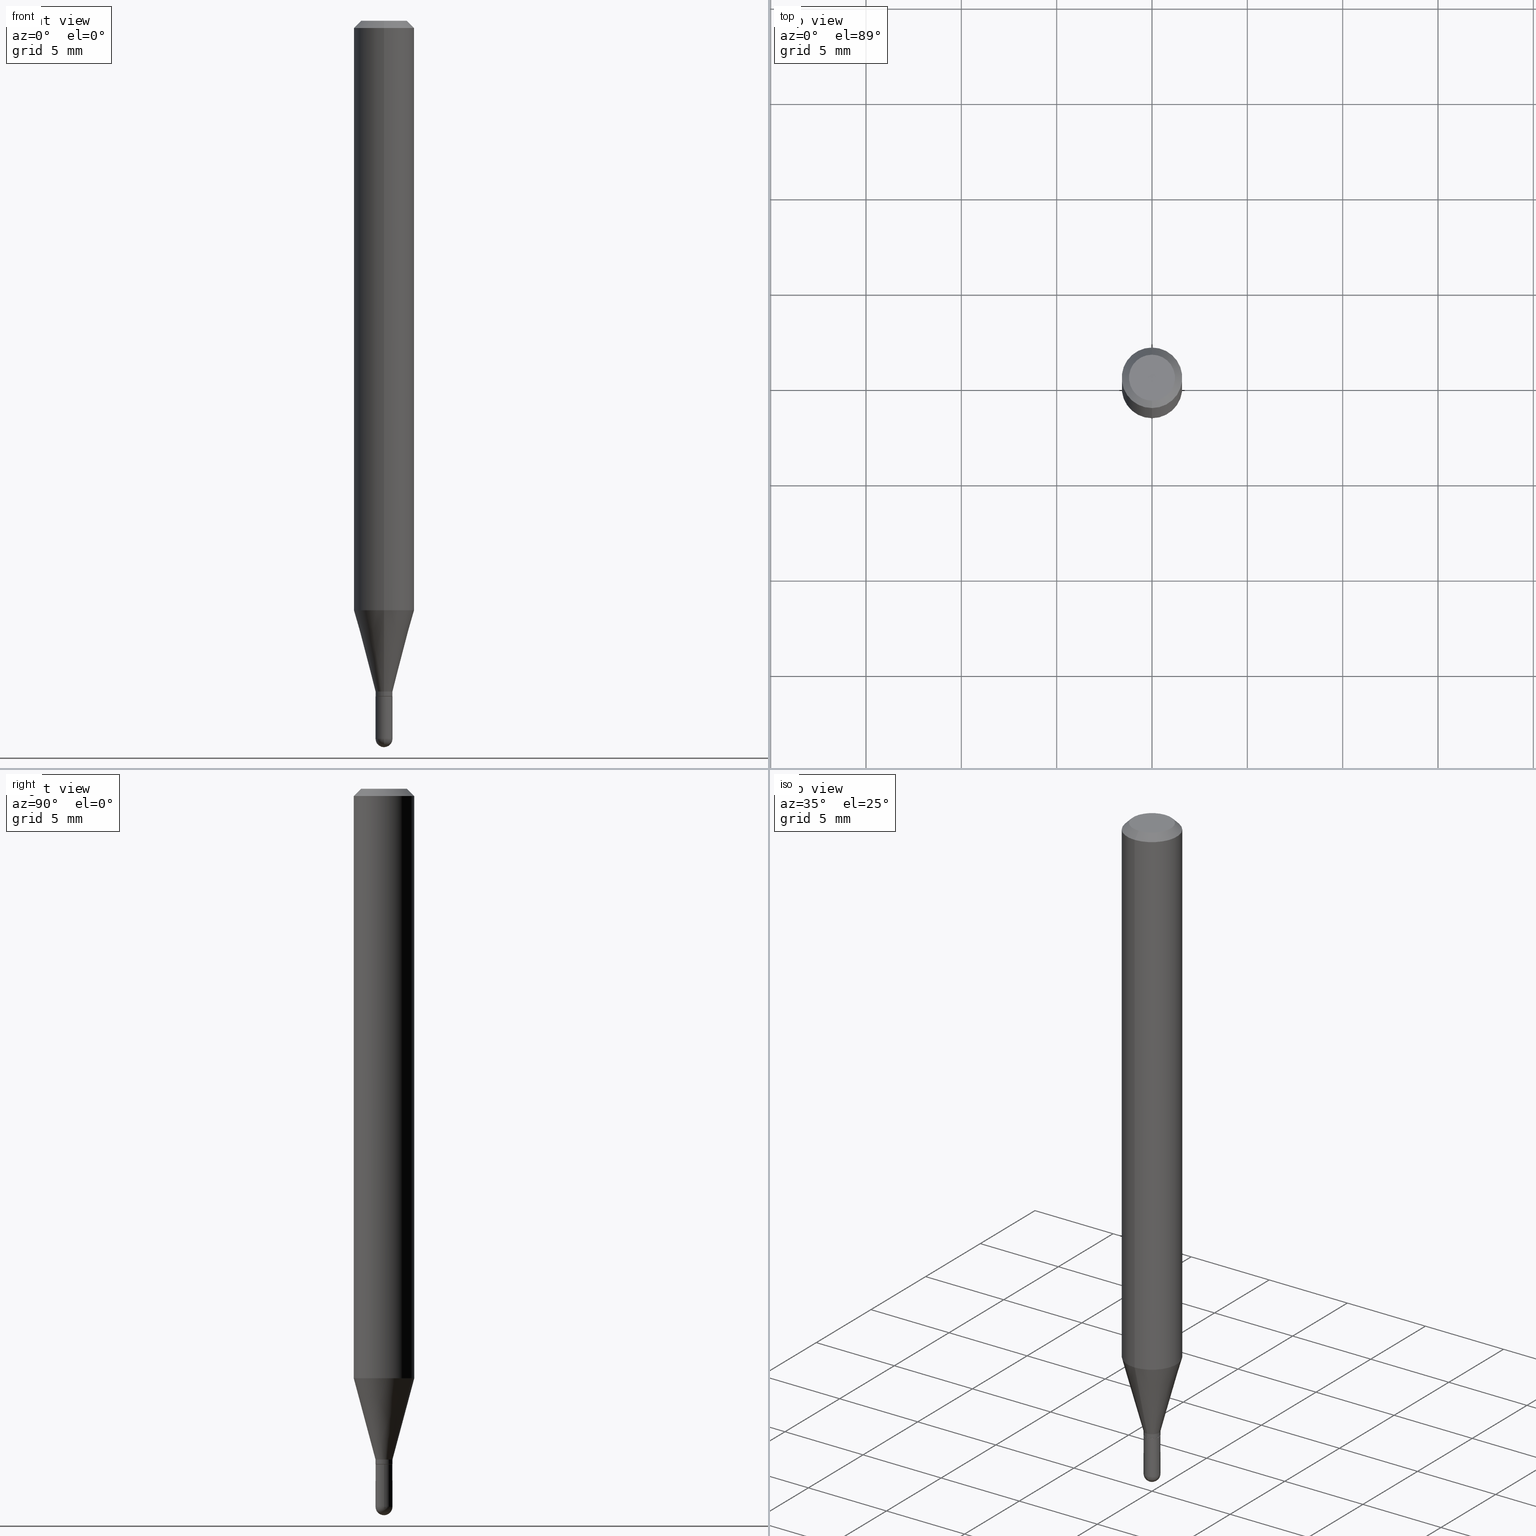
[diagram: canonical four-view strip — front | top / right | iso, engineering-drawing reading convention]
A machine part, canonical four-view strip (front | top / right | iso — engineering-drawing reading convention). The complete STEP part file that produces these views, byte-faithful:
ISO-10303-21;
HEADER;
FILE_DESCRIPTION (( 'STEP AP203' ),
    '1' );
FILE_NAME ('00473.STEP',
    '2024-03-07T17:59:15',
    ( '' ),
    ( '' ),
    'SwSTEP 2.0',
    'SolidWorks 2023',
    '' );
FILE_SCHEMA (( 'CONFIG_CONTROL_DESIGN' ));
ENDSEC;

DATA;
#1 = AXIS2_PLACEMENT_3D ( 'NONE', #98, #503, #107 ) ;
#2 = VECTOR ( 'NONE', #240, 39.37007874015748143 ) ;
#3 = CARTESIAN_POINT ( 'NONE',  ( 0.01750000000000000167, -4.992818314545698211E-15, -1.395000000000000018 ) ) ;
#4 = ORIENTED_EDGE ( 'NONE', *, *, #105, .F. ) ;
#5 = CARTESIAN_POINT ( 'NONE',  ( 4.440892098500924943E-16, 0.06249999999999993755, -0.01500000000000022669 ) ) ;
#6 = DIRECTION ( 'NONE',  ( 6.982962677686265922E-15, 1.000000000000000000, -3.491469234703768583E-15 ) ) ;
#7 = ORIENTED_EDGE ( 'NONE', *, *, #35, .F. ) ;
#8 = ADVANCED_FACE ( 'NONE', ( #328 ), #427, .T. ) ;
#9 = DIRECTION ( 'NONE',  ( -2.445477258460487856E-29, 3.491469234703768583E-15, 1.000000000000000000 ) ) ;
#10 =( NAMED_UNIT ( * ) SI_UNIT ( $, .STERADIAN. ) SOLID_ANGLE_UNIT ( ) );
#11 = EDGE_CURVE ( 'NONE', #233, #368, #108, .T. ) ;
#12 = DIRECTION ( 'NONE',  ( -6.982962677686266711E-15, -1.000000000000000000, 0.000000000000000000 ) ) ;
#13 = ORIENTED_EDGE ( 'NONE', *, *, #232, .T. ) ;
#14 = PERSON_AND_ORGANIZATION ( #388, #297 ) ;
#15 = DIRECTION ( 'NONE',  ( -2.445477258460488416E-29, 3.491469234703768188E-15, 1.000000000000000000 ) ) ;
#16 = ORIENTED_EDGE ( 'NONE', *, *, #280, .T. ) ;
#17 = CARTESIAN_POINT ( 'NONE',  ( 1.225686219186511394E-16, 0.01699999999999513012, -1.395000000000000018 ) ) ;
#18 = CC_DESIGN_PERSON_AND_ORGANIZATION_ASSIGNMENT ( #274, #308, ( #191 ) ) ;
#19 = CARTESIAN_POINT ( 'NONE',  ( -1.187103655206324139E-16, -0.01700000000000487232, -1.395000000000000018 ) ) ;
#20 = ORIENTED_EDGE ( 'NONE', *, *, #480, .T. ) ;
#21 = ORIENTED_EDGE ( 'NONE', *, *, #48, .F. ) ;
#22 = DIRECTION ( 'NONE',  ( -6.982962677686265133E-15, -1.000000000000000000, 0.000000000000000000 ) ) ;
#23 = LINE ( 'NONE', #151, #429 ) ;
#24 = VERTEX_POINT ( 'NONE', #375 ) ;
#25 = CYLINDRICAL_SURFACE ( 'NONE', #214, 0.06250000000000000000 ) ;
#26 = VERTEX_POINT ( 'NONE', #110 ) ;
#27 = DIRECTION ( 'NONE',  ( -2.445468806185136597E-29, 3.491481338843145583E-15, 1.000000000000000000 ) ) ;
#28 = CARTESIAN_POINT ( 'NONE',  ( 4.440892098500625669E-16, 0.06250000000000000000, -2.182168271689854871E-16 ) ) ;
#29 = CIRCLE ( 'NONE', #391, 0.01750000000000000167 ) ;
#30 = CIRCLE ( 'NONE', #452, 0.01700000000000000122 ) ;
#31 = DIRECTION ( 'NONE',  ( 2.445477258460487856E-29, -3.491469234703768583E-15, -1.000000000000000000 ) ) ;
#32 = ORIENTED_EDGE ( 'NONE', *, *, #415, .T. ) ;
#33 = PLANE ( 'NONE',  #194 ) ;
#34 = FACE_OUTER_BOUND ( 'NONE', #180, .T. ) ;
#35 = EDGE_CURVE ( 'NONE', #248, #379, #311, .T. ) ;
#36 = DIRECTION ( 'NONE',  ( -2.445477258460488416E-29, 3.491469234703768188E-15, 1.000000000000000000 ) ) ;
#37 = CARTESIAN_POINT ( 'NONE',  ( 3.625407505169465812E-29, -5.176121084834964763E-15, -1.482500000000000373 ) ) ;
#38 = FACE_OUTER_BOUND ( 'NONE', #411, .T. ) ;
#39 = VECTOR ( 'NONE', #493, 39.37007874015748143 ) ;
#40 = CC_DESIGN_APPROVAL ( #78, ( #191 ) ) ;
#41 = AXIS2_PLACEMENT_3D ( 'NONE', #341, #485, #373 ) ;
#42 = LOCAL_TIME ( 12, 59, 15.00000000000000000, #119 ) ;
#43 = MECHANICAL_CONTEXT ( 'NONE', #102, 'mechanical' ) ;
#44 = EDGE_LOOP ( 'NONE', ( #483, #16, #186, #4 ) ) ;
#45 = AXIS2_PLACEMENT_3D ( 'NONE', #67, #456, #101 ) ;
#46 = DATE_AND_TIME ( #103, #116 ) ;
#47 = ORIENTED_EDGE ( 'NONE', *, *, #239, .F. ) ;
#48 = EDGE_CURVE ( 'NONE', #492, #24, #357, .T. ) ;
#49 = DIRECTION ( 'NONE',  ( -2.445468806185136597E-29, 3.491481338843145583E-15, 1.000000000000000000 ) ) ;
#50 = DIRECTION ( 'NONE',  ( 0.000000000000000000, 0.000000000000000000, 1.000000000000000000 ) ) ;
#51 = VERTEX_POINT ( 'NONE', #72 ) ;
#52 = CC_DESIGN_PERSON_AND_ORGANIZATION_ASSIGNMENT ( #201, #162, ( #169 ) ) ;
#53 = CARTESIAN_POINT ( 'NONE',  ( 3.386986002967776783E-29, -4.835684890064719357E-15, -1.385000000000000009 ) ) ;
#54 = CARTESIAN_POINT ( 'NONE',  ( 3.410218036923151584E-29, -4.868853847794405178E-15, -1.394500000000000073 ) ) ;
#55 = ORIENTED_EDGE ( 'NONE', *, *, #280, .F. ) ;
#56 = APPLICATION_PROTOCOL_DEFINITION ( 'international standard', 'config_control_design', 1994, #102 ) ;
#57 = DIRECTION ( 'NONE',  ( -6.982962677686265922E-15, -1.000000000000000000, 4.370956789862821150E-15 ) ) ;
#58 = DIRECTION ( 'NONE',  ( -2.445477258460488416E-29, 3.491469234703768188E-15, 1.000000000000000000 ) ) ;
#59 = CARTESIAN_POINT ( 'NONE',  ( 3.411428984628265351E-29, -4.870616467686188228E-15, -1.395000000000000018 ) ) ;
#60 = ORIENTED_EDGE ( 'NONE', *, *, #170, .T. ) ;
#61 = ORIENTED_EDGE ( 'NONE', *, *, #48, .T. ) ;
#62 = CIRCLE ( 'NONE', #469, 0.01750000000000000167 ) ;
#63 = DIRECTION ( 'NONE',  ( -2.445477258460488416E-29, 3.491469234703768188E-15, 1.000000000000000000 ) ) ;
#64 = LOCAL_TIME ( 12, 59, 15.00000000000000000, #363 ) ;
#65 = ORIENTED_EDGE ( 'NONE', *, *, #396, .T. ) ;
#66 = EDGE_CURVE ( 'NONE', #458, #475, #229, .T. ) ;
#67 = CARTESIAN_POINT ( 'NONE',  ( 3.410218036923151584E-29, -4.868853847794405178E-15, -1.394500000000000073 ) ) ;
#68 = VERTEX_POINT ( 'NONE', #17 ) ;
#69 = ORIENTED_EDGE ( 'NONE', *, *, #313, .T. ) ;
#70 = AXIS2_PLACEMENT_3D ( 'NONE', #507, #509, #190 ) ;
#71 = CIRCLE ( 'NONE', #462, 0.01750000000000000860 ) ;
#72 = CARTESIAN_POINT ( 'NONE',  ( 1.222018468595459501E-16, 0.01749999999999482872, -1.482500000000000373 ) ) ;
#73 = DIRECTION ( 'NONE',  ( -2.445477258460488416E-29, 3.491469234703768188E-15, 1.000000000000000000 ) ) ;
#74 = AXIS2_PLACEMENT_3D ( 'NONE', #138, #73, #460 ) ;
#75 =( GEOMETRIC_REPRESENTATION_CONTEXT ( 3 ) GLOBAL_UNCERTAINTY_ASSIGNED_CONTEXT ( ( #354 ) ) GLOBAL_UNIT_ASSIGNED_CONTEXT ( ( #359, #85, #10 ) ) REPRESENTATION_CONTEXT ( 'NONE', 'WORKASPACE' ) );
#76 = ORIENTED_EDGE ( 'NONE', *, *, #35, .T. ) ;
#77 = SHAPE_DEFINITION_REPRESENTATION ( #467, #355 ) ;
#78 = APPROVAL ( #508, 'UNSPECIFIED' ) ;
#79 = AXIS2_PLACEMENT_3D ( 'NONE', #332, #400, #473 ) ;
#80 = LOCAL_TIME ( 12, 59, 15.00000000000000000, #461 ) ;
#81 = ADVANCED_FACE ( 'NONE', ( #38 ), #256, .T. ) ;
#82 = CARTESIAN_POINT ( 'NONE',  ( -4.364351673553618899E-16, -0.06250000000000427436, -1.217057713659400742 ) ) ;
#83 = DIRECTION ( 'NONE',  ( -2.445477258460488416E-29, 3.491469234703768188E-15, 1.000000000000000000 ) ) ;
#84 = CIRCLE ( 'NONE', #392, 0.01750000000000000167 ) ;
#85 =( NAMED_UNIT ( * ) PLANE_ANGLE_UNIT ( ) SI_UNIT ( $, .RADIAN. ) );
#86 = CARTESIAN_POINT ( 'NONE',  ( 2.976286960987981903E-29, -4.249319564100705935E-15, -1.217057713659400964 ) ) ;
#87 = CARTESIAN_POINT ( 'NONE',  ( -1.243449787579813061E-16, -0.01750000000000518155, -1.482500000000000373 ) ) ;
#88 = ORIENTED_EDGE ( 'NONE', *, *, #122, .T. ) ;
#89 = APPROVAL_DATE_TIME ( #502, #250 ) ;
#90 = ORIENTED_EDGE ( 'NONE', *, *, #314, .F. ) ;
#91 = ORIENTED_EDGE ( 'NONE', *, *, #353, .F. ) ;
#92 = FACE_OUTER_BOUND ( 'NONE', #300, .T. ) ;
#93 = DIRECTION ( 'NONE',  ( -2.445477258460488416E-29, 3.491469234703768188E-15, 1.000000000000000000 ) ) ;
#94 = DIRECTION ( 'NONE',  ( 1.000000000000000000, -6.982962677686248567E-15, 0.000000000000000000 ) ) ;
#95 = EDGE_LOOP ( 'NONE', ( #55, #304, #454, #47 ) ) ;
#96 = VECTOR ( 'NONE', #389, 39.37007874015748143 ) ;
#97 = CIRCLE ( 'NONE', #160, 0.04749999999999999362 ) ;
#98 = CARTESIAN_POINT ( 'NONE',  ( 3.411440775552381188E-29, -4.870599582411757603E-15, -1.395000000000000018 ) ) ;
#99 = CARTESIAN_POINT ( 'NONE',  ( 3.386986002967776783E-29, -4.835684890064719357E-15, -1.385000000000000009 ) ) ;
#100 = ORIENTED_EDGE ( 'NONE', *, *, #480, .F. ) ;
#101 = DIRECTION ( 'NONE',  ( -6.982962677686266711E-15, -1.000000000000000000, 0.000000000000000000 ) ) ;
#102 = APPLICATION_CONTEXT ( 'configuration controlled 3d designs of mechanical parts and assemblies' ) ;
#103 = CALENDAR_DATE ( 2024, 7, 3 ) ;
#104 = EDGE_LOOP ( 'NONE', ( #422, #144, #168, #253 ) ) ;
#105 = EDGE_CURVE ( 'NONE', #268, #206, #29, .T. ) ;
#106 = MANIFOLD_SOLID_BREP ( 'Body-Move/Copy2[1]', #317 ) ;
#107 = DIRECTION ( 'NONE',  ( -6.982962677686265922E-15, -1.000000000000000000, 0.000000000000000000 ) ) ;
#108 = LINE ( 'NONE', #133, #271 ) ;
#109 = LOCAL_TIME ( 12, 59, 15.00000000000000000, #385 ) ;
#110 = CARTESIAN_POINT ( 'NONE',  ( -1.222018468594754457E-16, -0.01750000000000485542, -1.394500000000000073 ) ) ;
#111 = EDGE_CURVE ( 'NONE', #228, #24, #345, .T. ) ;
#112 = AXIS2_PLACEMENT_3D ( 'NONE', #325, #482, #378 ) ;
#113 = CALENDAR_DATE ( 2024, 7, 3 ) ;
#114 = EDGE_CURVE ( 'NONE', #221, #468, #23, .T. ) ;
#115 = AXIS2_PLACEMENT_3D ( 'NONE', #448, #273, #387 ) ;
#116 = LOCAL_TIME ( 12, 59, 15.00000000000000000, #457 ) ;
#117 = EDGE_CURVE ( 'NONE', #368, #379, #257, .T. ) ;
#118 = DESIGN_CONTEXT ( 'detailed design', #136, 'design' ) ;
#119 = COORDINATED_UNIVERSAL_TIME_OFFSET ( 5, 0, .BEHIND. ) ;
#120 = DIRECTION ( 'NONE',  ( 6.982962677686265922E-15, 1.000000000000000000, 0.000000000000000000 ) ) ;
#121 = CC_DESIGN_PERSON_AND_ORGANIZATION_ASSIGNMENT ( #14, #147, ( #279 ) ) ;
#122 = EDGE_CURVE ( 'NONE', #468, #166, #437, .T. ) ;
#123 = APPLICATION_PROTOCOL_DEFINITION ( 'international standard', 'config_control_design', 1994, #136 ) ;
#124 = DIRECTION ( 'NONE',  ( 6.982962677686265922E-15, 1.000000000000000000, -3.483106191921935554E-15 ) ) ;
#125 = CIRCLE ( 'NONE', #45, 0.01749999999999992534 ) ;
#126 = ORIENTED_EDGE ( 'NONE', *, *, #405, .F. ) ;
#127 = CIRCLE ( 'NONE', #141, 0.06250000000000000000 ) ;
#128 = DIRECTION ( 'NONE',  ( 1.000000000000000000, 0.000000000000000000, 0.000000000000000000 ) ) ;
#129 = FACE_OUTER_BOUND ( 'NONE', #431, .T. ) ;
#130 = DIRECTION ( 'NONE',  ( -2.445468806185136597E-29, 3.491481338843145583E-15, 1.000000000000000000 ) ) ;
#131 = ORIENTED_EDGE ( 'NONE', *, *, #349, .T. ) ;
#132 = CARTESIAN_POINT ( 'NONE',  ( 2.842170943040716840E-16, 0.01749999999999508893, -1.385000000000000009 ) ) ;
#133 = CARTESIAN_POINT ( 'NONE',  ( 4.364351673553919652E-16, 0.06249999999999995143, -0.01500000000000022669 ) ) ;
#134 = DIRECTION ( 'NONE',  ( -6.982962677686265922E-15, -1.000000000000000000, 3.491469234703768583E-15 ) ) ;
#135 = ORIENTED_EDGE ( 'NONE', *, *, #199, .T. ) ;
#136 = APPLICATION_CONTEXT ( 'configuration controlled 3d designs of mechanical parts and assemblies' ) ;
#137 = CC_DESIGN_PERSON_AND_ORGANIZATION_ASSIGNMENT ( #399, #442, ( #376 ) ) ;
#138 = CARTESIAN_POINT ( 'NONE',  ( 0.000000000000000000, 0.000000000000000000, 0.000000000000000000 ) ) ;
#139 = SPHERICAL_SURFACE ( 'NONE', #155, 0.01750000000000000860 ) ;
#140 = ORIENTED_EDGE ( 'NONE', *, *, #307, .F. ) ;
#141 = AXIS2_PLACEMENT_3D ( 'NONE', #86, #408, #57 ) ;
#142 = CARTESIAN_POINT ( 'NONE',  ( 3.623910964163401181E-29, -5.178264216733472029E-15, -1.482500000000000151 ) ) ;
#143 = CARTESIAN_POINT ( 'NONE',  ( 3.623910964163401181E-29, -5.178264216733472029E-15, -1.482500000000000151 ) ) ;
#144 = ORIENTED_EDGE ( 'NONE', *, *, #432, .T. ) ;
#145 = ADVANCED_FACE ( 'NONE', ( #393 ), #224, .T. ) ;
#146 = DIRECTION ( 'NONE',  ( -1.000000000000000000, 7.105427357601001070E-15, -4.926315508542082329E-29 ) ) ;
#147 = PERSON_AND_ORGANIZATION_ROLE ( 'creator' ) ;
#148 = APPROVAL ( #337, 'UNSPECIFIED' ) ;
#149 = LINE ( 'NONE', #28, #496 ) ;
#150 = DATE_TIME_ROLE ( 'classification_date' ) ;
#151 = CARTESIAN_POINT ( 'NONE',  ( -1.222018468594752731E-16, -0.01750000000000476175, -1.385000000000000009 ) ) ;
#152 = APPROVAL_DATE_TIME ( #192, #78 ) ;
#153 = CARTESIAN_POINT ( 'NONE',  ( -0.01750000000000000167, 1.243449787580175444E-16, -8.608136407946085539E-31 ) ) ;
#154 = EDGE_CURVE ( 'NONE', #494, #268, #511, .T. ) ;
#155 = AXIS2_PLACEMENT_3D ( 'NONE', #299, #242, #120 ) ;
#156 = SECURITY_CLASSIFICATION_LEVEL ( 'unclassified' ) ;
#157 = ADVANCED_FACE ( 'NONE', ( #306 ), #33, .F. ) ;
#158 = AXIS2_PLACEMENT_3D ( 'NONE', #176, #58, #504 ) ;
#159 = FACE_OUTER_BOUND ( 'NONE', #445, .T. ) ;
#160 = AXIS2_PLACEMENT_3D ( 'NONE', #361, #322, #476 ) ;
#161 = DIRECTION ( 'NONE',  ( -2.445477258460488416E-29, 3.491469234703768188E-15, 1.000000000000000000 ) ) ;
#162 = PERSON_AND_ORGANIZATION_ROLE ( 'creator' ) ;
#163 = ORIENTED_EDGE ( 'NONE', *, *, #239, .T. ) ;
#164 = DIRECTION ( 'NONE',  ( 1.000000000000000000, -6.982962677686248567E-15, 0.000000000000000000 ) ) ;
#165 = FACE_OUTER_BOUND ( 'NONE', #321, .T. ) ;
#166 = VERTEX_POINT ( 'NONE', #187 ) ;
#167 = VECTOR ( 'NONE', #230, 39.37007874015748143 ) ;
#168 = ORIENTED_EDGE ( 'NONE', *, *, #122, .F. ) ;
#169 = PRODUCT_DEFINITION_FORMATION_WITH_SPECIFIED_SOURCE ( 'ANY', '', #376, .NOT_KNOWN. ) ;
#170 = EDGE_CURVE ( 'NONE', #206, #51, #188, .T. ) ;
#171 = DIRECTION ( 'NONE',  ( -1.000000000000000000, 6.982962677686265922E-15, -4.876176775795935793E-29 ) ) ;
#172 = ORIENTED_EDGE ( 'NONE', *, *, #432, .F. ) ;
#173 = EDGE_LOOP ( 'NONE', ( #330, #327, #126, #100 ) ) ;
#174 = FACE_OUTER_BOUND ( 'NONE', #104, .T. ) ;
#175 = DIRECTION ( 'NONE',  ( -6.982962677686266711E-15, -1.000000000000000000, 3.491469234703768977E-15 ) ) ;
#176 = CARTESIAN_POINT ( 'NONE',  ( 3.668215887690735182E-31, -5.237203852055654920E-17, -0.01500000000000000812 ) ) ;
#177 = FACE_OUTER_BOUND ( 'NONE', #44, .T. ) ;
#178 = ORIENTED_EDGE ( 'NONE', *, *, #349, .F. ) ;
#179 = DATE_AND_TIME ( #285, #42 ) ;
#180 = EDGE_LOOP ( 'NONE', ( #367, #32, #312, #135, #241 ) ) ;
#181 = CIRCLE ( 'NONE', #112, 0.06250000000000000000 ) ;
#182 = CARTESIAN_POINT ( 'NONE',  ( -0.01750000000000000167, -4.899023797502559247E-15, -1.482500000000000373 ) ) ;
#183 = LENGTH_MEASURE_WITH_UNIT ( LENGTH_MEASURE( 0.02539999999999999897 ), #209 );
#184 = DIRECTION ( 'NONE',  ( -2.445477258460488416E-29, 3.491469234703768188E-15, 1.000000000000000000 ) ) ;
#185 = ADVANCED_FACE ( 'NONE', ( #92 ), #403, .T. ) ;
#186 = ORIENTED_EDGE ( 'NONE', *, *, #170, .F. ) ;
#187 = CARTESIAN_POINT ( 'NONE',  ( 4.440892098500920998E-16, 0.06249999999999572564, -1.217057713659401186 ) ) ;
#188 = CIRCLE ( 'NONE', #41, 0.01750000000000000167 ) ;
#189 = AXIS2_PLACEMENT_3D ( 'NONE', #287, #439, #124 ) ;
#190 = DIRECTION ( 'NONE',  ( -6.982962677686265922E-15, -1.000000000000000000, 3.491469234703767794E-15 ) ) ;
#191 = SECURITY_CLASSIFICATION ( '', '', #156 ) ;
#192 = DATE_AND_TIME ( #346, #109 ) ;
#193 = EDGE_CURVE ( 'NONE', #166, #368, #149, .T. ) ;
#194 = AXIS2_PLACEMENT_3D ( 'NONE', #450, #269, #171 ) ;
#195 = AXIS2_PLACEMENT_3D ( 'NONE', #334, #27, #486 ) ;
#196 = CC_DESIGN_PERSON_AND_ORGANIZATION_ASSIGNMENT ( #320, #474, ( #169 ) ) ;
#197 = ORIENTED_EDGE ( 'NONE', *, *, #398, .F. ) ;
#198 = APPROVAL_STATUS ( 'not_yet_approved' ) ;
#199 = EDGE_CURVE ( 'NONE', #206, #492, #369, .T. ) ;
#200 = AXIS2_PLACEMENT_3D ( 'NONE', #377, #235, #281 ) ;
#201 = PERSON_AND_ORGANIZATION ( #388, #297 ) ;
#202 = EDGE_LOOP ( 'NONE', ( #7, #284, #418, #390 ) ) ;
#203 = CARTESIAN_POINT ( 'NONE',  ( -1.187103655206324139E-16, -0.01700000000000487232, -1.395000000000000018 ) ) ;
#204 = DIRECTION ( 'NONE',  ( 6.982962677686265922E-15, 1.000000000000000000, 0.000000000000000000 ) ) ;
#205 = CARTESIAN_POINT ( 'NONE',  ( 3.667454938774673140E-29, -5.238293574213973782E-15, -1.500000000000000222 ) ) ;
#206 = VERTEX_POINT ( 'NONE', #262 ) ;
#207 = DIRECTION ( 'NONE',  ( -2.445477258460488416E-29, 3.491469234703768188E-15, 1.000000000000000000 ) ) ;
#208 = ORIENTED_EDGE ( 'NONE', *, *, #111, .T. ) ;
#209 =( LENGTH_UNIT ( ) NAMED_UNIT ( * ) SI_UNIT ( $, .METRE. ) );
#210 = ORIENTED_EDGE ( 'NONE', *, *, #265, .F. ) ;
#211 = CARTESIAN_POINT ( 'NONE',  ( 2.976286960987981903E-29, -4.249319564100705935E-15, -1.217057713659400964 ) ) ;
#212 = CARTESIAN_POINT ( 'NONE',  ( 3.411440775552381188E-29, -4.870599582411757603E-15, -1.395000000000000018 ) ) ;
#213 = ORIENTED_EDGE ( 'NONE', *, *, #307, .T. ) ;
#214 = AXIS2_PLACEMENT_3D ( 'NONE', #259, #93, #386 ) ;
#215 = CARTESIAN_POINT ( 'NONE',  ( 3.840629472727447874E-16, 0.04749999999999999362, -1.747056831868805136E-16 ) ) ;
#216 = DIRECTION ( 'NONE',  ( -6.982962677686265133E-15, -1.000000000000000000, 3.491469234703768188E-15 ) ) ;
#217 = FACE_OUTER_BOUND ( 'NONE', #490, .T. ) ;
#218 = EDGE_LOOP ( 'NONE', ( #484, #213, #20, #91 ) ) ;
#219 = EDGE_CURVE ( 'NONE', #26, #458, #125, .T. ) ;
#220 = DIRECTION ( 'NONE',  ( -2.445468806185136597E-29, 3.491481338843145583E-15, 1.000000000000000000 ) ) ;
#221 = VERTEX_POINT ( 'NONE', #419 ) ;
#222 = CC_DESIGN_DATE_AND_TIME_ASSIGNMENT ( #179, #243, ( #279 ) ) ;
#223 = ORIENTED_EDGE ( 'NONE', *, *, #114, .T. ) ;
#224 = CONICAL_SURFACE ( 'NONE', #423, 0.06250000000000000000, 0.7853981633974483900 ) ;
#225 = CIRCLE ( 'NONE', #438, 0.01749999999999992534 ) ;
#226 = DIRECTION ( 'NONE',  ( 6.982962677686265922E-15, 1.000000000000000000, -3.483106191921935554E-15 ) ) ;
#227 = CARTESIAN_POINT ( 'NONE',  ( 1.243449787580506765E-16, 0.01749999999999499872, -1.394500000000000073 ) ) ;
#228 = VERTEX_POINT ( 'NONE', #182 ) ;
#229 = LINE ( 'NONE', #348, #96 ) ;
#230 = DIRECTION ( 'NONE',  ( -4.851104656540964275E-15, -0.7071067811865500152, -0.7071067811865450192 ) ) ;
#231 = LINE ( 'NONE', #234, #39 ) ;
#232 = EDGE_CURVE ( 'NONE', #68, #458, #340, .T. ) ;
#233 = VERTEX_POINT ( 'NONE', #215 ) ;
#234 = CARTESIAN_POINT ( 'NONE',  ( -1.222018468595091202E-16, -0.01749999999999992534, 6.110071160731568544E-17 ) ) ;
#235 = DIRECTION ( 'NONE',  ( -2.445468806185136597E-29, 3.491481338843145583E-15, 1.000000000000000000 ) ) ;
#236 = ADVANCED_FACE ( 'NONE', ( #174 ), #370, .T. ) ;
#237 = CLOSED_SHELL ( 'NONE', ( #394, #185, #331, #434, #236, #443, #81, #145, #499, #298, #275, #8 ) ) ;
#238 = CIRCLE ( 'NONE', #79, 0.01700000000000000122 ) ;
#239 = EDGE_CURVE ( 'NONE', #51, #228, #62, .T. ) ;
#240 = DIRECTION ( 'NONE',  ( -2.445477258460488416E-29, 3.491469234703768583E-15, 1.000000000000000000 ) ) ;
#241 = ORIENTED_EDGE ( 'NONE', *, *, #313, .F. ) ;
#242 = DIRECTION ( 'NONE',  ( -1.000000000000000000, 6.982962677686265922E-15, -4.883557194083112340E-29 ) ) ;
#243 = DATE_TIME_ROLE ( 'creation_date' ) ;
#244 = VECTOR ( 'NONE', #463, 39.37007874015748143 ) ;
#245 = DIRECTION ( 'NONE',  ( -6.982962677686265133E-15, -1.000000000000000000, 0.000000000000000000 ) ) ;
#246 = CIRCLE ( 'NONE', #258, 0.01750000000000000167 ) ;
#247 = PERSON_AND_ORGANIZATION ( #388, #297 ) ;
#248 = VERTEX_POINT ( 'NONE', #291 ) ;
#249 = CALENDAR_DATE ( 2024, 7, 3 ) ;
#250 = APPROVAL ( #198, 'UNSPECIFIED' ) ;
#251 = ORIENTED_EDGE ( 'NONE', *, *, #193, .T. ) ;
#252 = FACE_OUTER_BOUND ( 'NONE', #95, .T. ) ;
#253 = ORIENTED_EDGE ( 'NONE', *, *, #114, .F. ) ;
#254 = DIRECTION ( 'NONE',  ( 5.024295867788190974E-15, 0.7071067811865681119, 0.7071067811865270336 ) ) ;
#255 = DIRECTION ( 'NONE',  ( -6.982962677686265133E-15, -1.000000000000000000, 0.000000000000000000 ) ) ;
#256 = CYLINDRICAL_SURFACE ( 'NONE', #70, 0.06250000000000000000 ) ;
#257 = CIRCLE ( 'NONE', #158, 0.06250000000000000000 ) ;
#258 = AXIS2_PLACEMENT_3D ( 'NONE', #59, #130, #366 ) ;
#259 = CARTESIAN_POINT ( 'NONE',  ( 0.000000000000000000, 0.000000000000000000, 0.000000000000000000 ) ) ;
#260 = DIRECTION ( 'NONE',  ( -6.982962677686265922E-15, -1.000000000000000000, 0.000000000000000000 ) ) ;
#261 = ORIENTED_EDGE ( 'NONE', *, *, #506, .F. ) ;
#262 = CARTESIAN_POINT ( 'NONE',  ( 0.01750000000000000167, -5.145570623120085689E-15, -1.482500000000000373 ) ) ;
#263 = DIRECTION ( 'NONE',  ( -6.982962677686265133E-15, -1.000000000000000000, 0.000000000000000000 ) ) ;
#264 = ORIENTED_EDGE ( 'NONE', *, *, #314, .T. ) ;
#265 = EDGE_CURVE ( 'NONE', #420, #26, #288, .T. ) ;
#266 = CARTESIAN_POINT ( 'NONE',  ( -4.364351673553916201E-16, -0.06250000000000000000, 2.182168271689854871E-16 ) ) ;
#267 = CARTESIAN_POINT ( 'NONE',  ( 3.623910964163401181E-29, -5.178264216733472029E-15, -1.482500000000000151 ) ) ;
#268 = VERTEX_POINT ( 'NONE', #87 ) ;
#269 = DIRECTION ( 'NONE',  ( 2.438088387897960049E-29, -3.491481338843145188E-15, -1.000000000000000000 ) ) ;
#270 = FACE_OUTER_BOUND ( 'NONE', #402, .T. ) ;
#271 = VECTOR ( 'NONE', #294, 39.37007874015748143 ) ;
#272 = CIRCLE ( 'NONE', #283, 0.01749999999999992534 ) ;
#273 = DIRECTION ( 'NONE',  ( -2.445468806185136597E-29, 3.491481338843145583E-15, 1.000000000000000000 ) ) ;
#274 = PERSON_AND_ORGANIZATION ( #388, #297 ) ;
#275 = ADVANCED_FACE ( 'NONE', ( #217 ), #471, .T. ) ;
#276 = DIRECTION ( 'NONE',  ( -6.982962677686265922E-15, -1.000000000000000000, 4.370956789862821150E-15 ) ) ;
#277 = MANIFOLD_SOLID_BREP ( 'Body-Move/Copy2[2]', #237 ) ;
#278 = DATE_AND_TIME ( #113, #80 ) ;
#279 = PRODUCT_DEFINITION ( 'UNKNOWN', '', #169, #118 ) ;
#280 = EDGE_CURVE ( 'NONE', #494, #51, #71, .T. ) ;
#281 = DIRECTION ( 'NONE',  ( 1.000000000000000000, -6.982962677686265922E-15, 4.876176775795936353E-29 ) ) ;
#282 = PRODUCT_RELATED_PRODUCT_CATEGORY ( 'detail', '', ( #376 ) ) ;
#283 = AXIS2_PLACEMENT_3D ( 'NONE', #53, #15, #255 ) ;
#284 = ORIENTED_EDGE ( 'NONE', *, *, #428, .F. ) ;
#285 = CALENDAR_DATE ( 2024, 7, 3 ) ;
#286 = ADVANCED_FACE ( 'NONE', ( #252 ), #440, .T. ) ;
#287 = CARTESIAN_POINT ( 'NONE',  ( 3.668215887690735182E-31, -5.237203852055654920E-17, -0.01500000000000000812 ) ) ;
#288 = LINE ( 'NONE', #19, #296 ) ;
#289 = ORIENTED_EDGE ( 'NONE', *, *, #428, .T. ) ;
#290 = PLANE ( 'NONE',  #512 ) ;
#291 = CARTESIAN_POINT ( 'NONE',  ( -3.773273898774340269E-16, -0.04749999999999999362, 1.569838941099773992E-16 ) ) ;
#292 = ORIENTED_EDGE ( 'NONE', *, *, #455, .T. ) ;
#293 = FACE_OUTER_BOUND ( 'NONE', #173, .T. ) ;
#294 = DIRECTION ( 'NONE',  ( 4.937700262164548042E-15, 0.7071067811865451302, -0.7071067811865499042 ) ) ;
#295 = ORIENTED_EDGE ( 'NONE', *, *, #506, .T. ) ;
#296 = VECTOR ( 'NONE', #380, 39.37007874015748143 ) ;
#297 = ORGANIZATION ( 'UNSPECIFIED', 'UNSPECIFIED', '' ) ;
#298 = ADVANCED_FACE ( 'NONE', ( #165 ), #444, .F. ) ;
#299 = CARTESIAN_POINT ( 'NONE',  ( 3.623910964163401181E-29, -5.178264216733472029E-15, -1.482500000000000151 ) ) ;
#300 = EDGE_LOOP ( 'NONE', ( #292, #13, #395, #210 ) ) ;
#301 = APPROVAL_ROLE ( '' ) ;
#302 = FACE_OUTER_BOUND ( 'NONE', #356, .T. ) ;
#303 = DIRECTION ( 'NONE',  ( 6.982962677686265922E-15, 1.000000000000000000, 0.000000000000000000 ) ) ;
#304 = ORIENTED_EDGE ( 'NONE', *, *, #154, .T. ) ;
#305 = CARTESIAN_POINT ( 'NONE',  ( 3.411440775552381188E-29, -4.870599582411757603E-15, -1.395000000000000018 ) ) ;
#306 = FACE_OUTER_BOUND ( 'NONE', #478, .T. ) ;
#307 = EDGE_CURVE ( 'NONE', #458, #26, #470, .T. ) ;
#308 = PERSON_AND_ORGANIZATION_ROLE ( 'classification_officer' ) ;
#309 = VECTOR ( 'NONE', #254, 39.37007874015748143 ) ;
#310 = CONICAL_SURFACE ( 'NONE', #424, 0.01749999999999992534, 0.2617993877991502960 ) ;
#311 = LINE ( 'NONE', #464, #167 ) ;
#312 = ORIENTED_EDGE ( 'NONE', *, *, #105, .T. ) ;
#313 = EDGE_CURVE ( 'NONE', #24, #492, #246, .T. ) ;
#314 = EDGE_CURVE ( 'NONE', #379, #368, #181, .T. ) ;
#315 = AXIS2_PLACEMENT_3D ( 'NONE', #211, #36, #276 ) ;
#316 = ADVANCED_FACE ( 'NONE', ( #177 ), #139, .T. ) ;
#317 = CLOSED_SHELL ( 'NONE', ( #472, #286, #157, #316, #466 ) ) ;
#318 = CYLINDRICAL_SURFACE ( 'NONE', #195, 0.01750000000000000167 ) ;
#319 = DIRECTION ( 'NONE',  ( -2.445477258460488416E-29, 3.491469234703768188E-15, 1.000000000000000000 ) ) ;
#320 = PERSON_AND_ORGANIZATION ( #388, #297 ) ;
#321 = EDGE_LOOP ( 'NONE', ( #381, #197 ) ) ;
#322 = DIRECTION ( 'NONE',  ( -2.445477258460488416E-29, 3.491469234703768188E-15, 1.000000000000000000 ) ) ;
#323 = CARTESIAN_POINT ( 'NONE',  ( 3.316907271900976096E-16, 0.04749999999999999362, -1.702752359176547227E-16 ) ) ;
#324 = AXIS2_PLACEMENT_3D ( 'NONE', #54, #207, #12 ) ;
#325 = CARTESIAN_POINT ( 'NONE',  ( 3.668215887690735182E-31, -5.237203852055654920E-17, -0.01500000000000000812 ) ) ;
#326 = EDGE_LOOP ( 'NONE', ( #289, #65 ) ) ;
#327 = ORIENTED_EDGE ( 'NONE', *, *, #66, .T. ) ;
#328 = FACE_OUTER_BOUND ( 'NONE', #218, .T. ) ;
#329 = LINE ( 'NONE', #338, #371 ) ;
#330 = ORIENTED_EDGE ( 'NONE', *, *, #219, .T. ) ;
#331 = ADVANCED_FACE ( 'NONE', ( #129 ), #497, .T. ) ;
#332 = CARTESIAN_POINT ( 'NONE',  ( 3.411440775552381188E-29, -4.870599582411757603E-15, -1.395000000000000018 ) ) ;
#333 = DIRECTION ( 'NONE',  ( 1.000000000000000000, -6.982962677686248567E-15, 0.000000000000000000 ) ) ;
#334 = CARTESIAN_POINT ( 'NONE',  ( 0.000000000000000000, 0.000000000000000000, 0.000000000000000000 ) ) ;
#335 = DIRECTION ( 'NONE',  ( -2.445468806185136877E-29, 3.491481338843145188E-15, 1.000000000000000000 ) ) ;
#336 = AXIS2_PLACEMENT_3D ( 'NONE', #412, #63, #22 ) ;
#337 = APPROVAL_STATUS ( 'not_yet_approved' ) ;
#338 = CARTESIAN_POINT ( 'NONE',  ( 1.243449787580508491E-16, 0.01749999999999508893, -1.385000000000000009 ) ) ;
#339 = ORIENTED_EDGE ( 'NONE', *, *, #265, .T. ) ;
#340 = LINE ( 'NONE', #501, #309 ) ;
#341 = CARTESIAN_POINT ( 'NONE',  ( 3.625407505169465812E-29, -5.176121084834964763E-15, -1.482500000000000373 ) ) ;
#342 = CARTESIAN_POINT ( 'NONE',  ( 3.668215887690735182E-31, -5.237203852055654920E-17, -0.01500000000000000812 ) ) ;
#343 = DIRECTION ( 'NONE',  ( -2.445468806185136597E-29, 3.491481338843145583E-15, 1.000000000000000000 ) ) ;
#344 = APPROVAL_PERSON_ORGANIZATION ( #401, #148, #301 ) ;
#345 = LINE ( 'NONE', #153, #244 ) ;
#346 = CALENDAR_DATE ( 2024, 7, 3 ) ;
#347 = DIRECTION ( 'NONE',  ( 2.445477258460488416E-29, -3.491469234703768188E-15, -1.000000000000000000 ) ) ;
#348 = CARTESIAN_POINT ( 'NONE',  ( 1.243449787580169774E-16, 0.01749999999999992534, -6.110071160731568544E-17 ) ) ;
#349 = EDGE_CURVE ( 'NONE', #166, #468, #127, .T. ) ;
#350 = VECTOR ( 'NONE', #335, 39.37007874015748143 ) ;
#351 = AXIS2_PLACEMENT_3D ( 'NONE', #362, #9, #134 ) ;
#352 = CC_DESIGN_SECURITY_CLASSIFICATION ( #191, ( #169 ) ) ;
#353 = EDGE_CURVE ( 'NONE', #475, #221, #272, .T. ) ;
#354 = UNCERTAINTY_MEASURE_WITH_UNIT (LENGTH_MEASURE( 1.000000000000000082E-05 ), #359, 'distance_accuracy_value', 'NONE');
#355 = ADVANCED_BREP_SHAPE_REPRESENTATION ( '00473', ( #106, #277, #383 ), #75 ) ;
#356 = EDGE_LOOP ( 'NONE', ( #172, #441, #223, #178 ) ) ;
#357 = CIRCLE ( 'NONE', #115, 0.01750000000000000167 ) ;
#358 = AXIS2_PLACEMENT_3D ( 'NONE', #212, #489, #260 ) ;
#359 =( CONVERSION_BASED_UNIT ( 'INCH', #183 ) LENGTH_UNIT ( ) NAMED_UNIT ( #453 ) );
#360 = ORIENTED_EDGE ( 'NONE', *, *, #232, .F. ) ;
#361 = CARTESIAN_POINT ( 'NONE',  ( 2.166911608339997140E-46, -3.093754067295817987E-32, -8.860894538451535659E-18 ) ) ;
#362 = CARTESIAN_POINT ( 'NONE',  ( 3.411440775552381188E-29, -4.870599582411757603E-15, -1.395000000000000018 ) ) ;
#363 = COORDINATED_UNIVERSAL_TIME_OFFSET ( 5, 0, .BEHIND. ) ;
#364 = ORIENTED_EDGE ( 'NONE', *, *, #117, .F. ) ;
#365 = CC_DESIGN_DATE_AND_TIME_ASSIGNMENT ( #278, #150, ( #191 ) ) ;
#366 = DIRECTION ( 'NONE',  ( 1.000000000000000000, -6.982962677686248567E-15, 0.000000000000000000 ) ) ;
#367 = ORIENTED_EDGE ( 'NONE', *, *, #111, .F. ) ;
#368 = VERTEX_POINT ( 'NONE', #5 ) ;
#369 = LINE ( 'NONE', #495, #350 ) ;
#370 = CONICAL_SURFACE ( 'NONE', #336, 0.01749999999999992534, 0.2617993877991502960 ) ;
#371 = VECTOR ( 'NONE', #498, 39.37007874015748143 ) ;
#372 = ORIENTED_EDGE ( 'NONE', *, *, #398, .T. ) ;
#373 = DIRECTION ( 'NONE',  ( 1.000000000000000000, -6.982962677686248567E-15, 0.000000000000000000 ) ) ;
#374 = CARTESIAN_POINT ( 'NONE',  ( 2.166911608339997140E-46, -3.093754067295817987E-32, -8.860894538451535659E-18 ) ) ;
#375 = CARTESIAN_POINT ( 'NONE',  ( -0.01750000000000000167, -4.899023797502559247E-15, -1.395000000000000018 ) ) ;
#376 = PRODUCT ( '00473', '00473', '', ( #43 ) ) ;
#377 = CARTESIAN_POINT ( 'NONE',  ( 0.000000000000000000, 0.000000000000000000, 0.000000000000000000 ) ) ;
#378 = DIRECTION ( 'NONE',  ( -6.982962677686265922E-15, -1.000000000000000000, 3.483106191921935554E-15 ) ) ;
#379 = VERTEX_POINT ( 'NONE', #487 ) ;
#380 = DIRECTION ( 'NONE',  ( -4.937700262164674260E-15, -0.7071067811865632269, 0.7071067811865319186 ) ) ;
#381 = ORIENTED_EDGE ( 'NONE', *, *, #455, .F. ) ;
#382 = APPROVAL_ROLE ( '' ) ;
#383 = AXIS2_PLACEMENT_3D ( 'NONE', #407, #50, #128 ) ;
#384 = ORIENTED_EDGE ( 'NONE', *, *, #193, .F. ) ;
#385 = COORDINATED_UNIVERSAL_TIME_OFFSET ( 5, 0, .BEHIND. ) ;
#386 = DIRECTION ( 'NONE',  ( -6.982962677686265922E-15, -1.000000000000000000, 3.491469234703767794E-15 ) ) ;
#387 = DIRECTION ( 'NONE',  ( 1.000000000000000000, -6.982962677686248567E-15, 0.000000000000000000 ) ) ;
#388 = PERSON ( 'UNSPECIFIED', 'UNSPECIFIED', 'UNSPECIFIED', ('UNSPECIFIED'), ('UNSPECIFIED'), ('UNSPECIFIED') ) ;
#389 = DIRECTION ( 'NONE',  ( -2.445477258460488416E-29, 3.491469234703768583E-15, 1.000000000000000000 ) ) ;
#390 = ORIENTED_EDGE ( 'NONE', *, *, #117, .T. ) ;
#391 = AXIS2_PLACEMENT_3D ( 'NONE', #37, #343, #333 ) ;
#392 = AXIS2_PLACEMENT_3D ( 'NONE', #406, #49, #164 ) ;
#393 = FACE_OUTER_BOUND ( 'NONE', #202, .T. ) ;
#394 = ADVANCED_FACE ( 'NONE', ( #293 ), #413, .T. ) ;
#395 = ORIENTED_EDGE ( 'NONE', *, *, #219, .F. ) ;
#396 = EDGE_CURVE ( 'NONE', #248, #233, #465, .T. ) ;
#397 = AXIS2_PLACEMENT_3D ( 'NONE', #447, #161, #216 ) ;
#398 = EDGE_CURVE ( 'NONE', #68, #420, #238, .T. ) ;
#399 = PERSON_AND_ORGANIZATION ( #388, #297 ) ;
#400 = DIRECTION ( 'NONE',  ( -2.445477258460488416E-29, 3.491469234703768188E-15, 1.000000000000000000 ) ) ;
#401 = PERSON_AND_ORGANIZATION ( #388, #297 ) ;
#402 = EDGE_LOOP ( 'NONE', ( #88, #251, #90, #261 ) ) ;
#403 = CONICAL_SURFACE ( 'NONE', #1, 0.01700000000000000122, 0.7853981633974739252 ) ;
#404 = AXIS2_PLACEMENT_3D ( 'NONE', #374, #319, #175 ) ;
#405 = EDGE_CURVE ( 'NONE', #221, #475, #225, .T. ) ;
#406 = CARTESIAN_POINT ( 'NONE',  ( 3.625407505169465812E-29, -5.176121084834964763E-15, -1.482500000000000373 ) ) ;
#407 = CARTESIAN_POINT ( 'NONE',  ( 0.000000000000000000, 0.000000000000000000, 0.000000000000000000 ) ) ;
#408 = DIRECTION ( 'NONE',  ( -2.445477258460488416E-29, 3.491469234703768188E-15, 1.000000000000000000 ) ) ;
#409 = ORIENTED_EDGE ( 'NONE', *, *, #199, .F. ) ;
#410 = DIRECTION ( 'NONE',  ( -1.807323732225330534E-15, -0.2588190451025182415, 0.9659258262890689783 ) ) ;
#411 = EDGE_LOOP ( 'NONE', ( #384, #131, #295, #364 ) ) ;
#412 = CARTESIAN_POINT ( 'NONE',  ( 3.386986002967776783E-29, -4.835684890064719357E-15, -1.385000000000000009 ) ) ;
#413 = CYLINDRICAL_SURFACE ( 'NONE', #397, 0.01749999999999992534 ) ;
#414 = CC_DESIGN_APPROVAL ( #148, ( #169 ) ) ;
#415 = EDGE_CURVE ( 'NONE', #228, #268, #84, .T. ) ;
#416 = CYLINDRICAL_SURFACE ( 'NONE', #200, 0.01750000000000000167 ) ;
#417 = DIRECTION ( 'NONE',  ( -1.000000000000000000, 6.982962677686265922E-15, -4.883557194083112340E-29 ) ) ;
#418 = ORIENTED_EDGE ( 'NONE', *, *, #11, .T. ) ;
#419 = CARTESIAN_POINT ( 'NONE',  ( -1.222018468594752731E-16, -0.01750000000000476175, -1.385000000000000009 ) ) ;
#420 = VERTEX_POINT ( 'NONE', #203 ) ;
#421 = APPROVAL_DATE_TIME ( #46, #148 ) ;
#422 = ORIENTED_EDGE ( 'NONE', *, *, #405, .T. ) ;
#423 = AXIS2_PLACEMENT_3D ( 'NONE', #342, #347, #226 ) ;
#424 = AXIS2_PLACEMENT_3D ( 'NONE', #99, #184, #263 ) ;
#425 = DIRECTION ( 'NONE',  ( -6.982962677686265922E-15, -1.000000000000000000, 0.000000000000000000 ) ) ;
#426 = APPROVAL_ROLE ( '' ) ;
#427 = CYLINDRICAL_SURFACE ( 'NONE', #74, 0.01749999999999992534 ) ;
#428 = EDGE_CURVE ( 'NONE', #233, #248, #97, .T. ) ;
#429 = VECTOR ( 'NONE', #410, 39.37007874015748143 ) ;
#430 = AXIS2_PLACEMENT_3D ( 'NONE', #267, #417, #204 ) ;
#431 = EDGE_LOOP ( 'NONE', ( #500, #76, #264, #449 ) ) ;
#432 = EDGE_CURVE ( 'NONE', #475, #166, #329, .T. ) ;
#433 = CC_DESIGN_APPROVAL ( #250, ( #279 ) ) ;
#434 = ADVANCED_FACE ( 'NONE', ( #270 ), #25, .T. ) ;
#435 = LINE ( 'NONE', #266, #2 ) ;
#436 = CARTESIAN_POINT ( 'NONE',  ( 3.386986002967776783E-29, -4.835684890064719357E-15, -1.385000000000000009 ) ) ;
#437 = CIRCLE ( 'NONE', #315, 0.06250000000000000000 ) ;
#438 = AXIS2_PLACEMENT_3D ( 'NONE', #436, #83, #245 ) ;
#439 = DIRECTION ( 'NONE',  ( 2.445477258460488416E-29, -3.491469234703768188E-15, -1.000000000000000000 ) ) ;
#440 = SPHERICAL_SURFACE ( 'NONE', #430, 0.01750000000000000860 ) ;
#441 = ORIENTED_EDGE ( 'NONE', *, *, #353, .T. ) ;
#442 = PERSON_AND_ORGANIZATION_ROLE ( 'design_owner' ) ;
#443 = ADVANCED_FACE ( 'NONE', ( #302 ), #310, .T. ) ;
#444 = PLANE ( 'NONE',  #351 ) ;
#445 = EDGE_LOOP ( 'NONE', ( #163, #208, #21, #409, #60 ) ) ;
#446 = DIRECTION ( 'NONE',  ( -7.105427357601001859E-15, -1.000000000000000000, 0.000000000000000000 ) ) ;
#447 = CARTESIAN_POINT ( 'NONE',  ( 0.000000000000000000, 0.000000000000000000, 0.000000000000000000 ) ) ;
#448 = CARTESIAN_POINT ( 'NONE',  ( 3.411428984628265351E-29, -4.870616467686188228E-15, -1.395000000000000018 ) ) ;
#449 = ORIENTED_EDGE ( 'NONE', *, *, #11, .F. ) ;
#450 = CARTESIAN_POINT ( 'NONE',  ( 1.222018468595437807E-16, 0.01749999999999513056, -1.395000000000000018 ) ) ;
#451 = AXIS2_PLACEMENT_3D ( 'NONE', #142, #146, #446 ) ;
#452 = AXIS2_PLACEMENT_3D ( 'NONE', #305, #488, #425 ) ;
#453 = DIMENSIONAL_EXPONENTS ( 1.000000000000000000, 0.000000000000000000, 0.000000000000000000, 0.000000000000000000, 0.000000000000000000, 0.000000000000000000, 0.000000000000000000 ) ;
#454 = ORIENTED_EDGE ( 'NONE', *, *, #415, .F. ) ;
#455 = EDGE_CURVE ( 'NONE', #420, #68, #30, .T. ) ;
#456 = DIRECTION ( 'NONE',  ( -2.445477258460488416E-29, 3.491469234703768188E-15, 1.000000000000000000 ) ) ;
#457 = COORDINATED_UNIVERSAL_TIME_OFFSET ( 5, 0, .BEHIND. ) ;
#458 = VERTEX_POINT ( 'NONE', #227 ) ;
#459 = DIRECTION ( 'NONE',  ( -2.445477258460488416E-29, 3.491469234703768583E-15, 1.000000000000000000 ) ) ;
#460 = DIRECTION ( 'NONE',  ( -6.982962677686265133E-15, -1.000000000000000000, 3.491469234703768188E-15 ) ) ;
#461 = COORDINATED_UNIVERSAL_TIME_OFFSET ( 5, 0, .BEHIND. ) ;
#462 = AXIS2_PLACEMENT_3D ( 'NONE', #143, #477, #303 ) ;
#463 = DIRECTION ( 'NONE',  ( -2.445468806185136877E-29, 3.491481338843145188E-15, 1.000000000000000000 ) ) ;
#464 = CARTESIAN_POINT ( 'NONE',  ( -4.287811248607203282E-16, -0.06250000000000005551, -0.01499999999999979128 ) ) ;
#465 = CIRCLE ( 'NONE', #404, 0.04749999999999999362 ) ;
#466 = ADVANCED_FACE ( 'NONE', ( #34 ), #416, .T. ) ;
#467 = PRODUCT_DEFINITION_SHAPE ( 'NONE', 'NONE',  #279 ) ;
#468 = VERTEX_POINT ( 'NONE', #82 ) ;
#469 = AXIS2_PLACEMENT_3D ( 'NONE', #491, #220, #94 ) ;
#470 = CIRCLE ( 'NONE', #324, 0.01749999999999992534 ) ;
#471 = CONICAL_SURFACE ( 'NONE', #358, 0.01700000000000000122, 0.7853981633974739252 ) ;
#472 = ADVANCED_FACE ( 'NONE', ( #159 ), #318, .T. ) ;
#473 = DIRECTION ( 'NONE',  ( -6.982962677686265922E-15, -1.000000000000000000, 0.000000000000000000 ) ) ;
#474 = PERSON_AND_ORGANIZATION_ROLE ( 'design_supplier' ) ;
#475 = VERTEX_POINT ( 'NONE', #132 ) ;
#476 = DIRECTION ( 'NONE',  ( -6.982962677686266711E-15, -1.000000000000000000, 3.491469234703768977E-15 ) ) ;
#477 = DIRECTION ( 'NONE',  ( 1.000000000000000000, -6.982962677686265922E-15, 4.883557194083112340E-29 ) ) ;
#478 = EDGE_LOOP ( 'NONE', ( #61, #69 ) ) ;
#479 = FACE_OUTER_BOUND ( 'NONE', #326, .T. ) ;
#480 = EDGE_CURVE ( 'NONE', #26, #221, #231, .T. ) ;
#481 = APPROVAL_PERSON_ORGANIZATION ( #247, #250, #382 ) ;
#482 = DIRECTION ( 'NONE',  ( -2.445477258460488416E-29, 3.491469234703768188E-15, 1.000000000000000000 ) ) ;
#483 = ORIENTED_EDGE ( 'NONE', *, *, #154, .F. ) ;
#484 = ORIENTED_EDGE ( 'NONE', *, *, #66, .F. ) ;
#485 = DIRECTION ( 'NONE',  ( -2.445468806185136597E-29, 3.491481338843145583E-15, 1.000000000000000000 ) ) ;
#486 = DIRECTION ( 'NONE',  ( 1.000000000000000000, -6.982962677686265922E-15, 4.876176775795936353E-29 ) ) ;
#487 = CARTESIAN_POINT ( 'NONE',  ( -4.364351673553912750E-16, -0.06250000000000005551, -0.01499999999999979128 ) ) ;
#488 = DIRECTION ( 'NONE',  ( -2.445477258460488416E-29, 3.491469234703768188E-15, 1.000000000000000000 ) ) ;
#489 = DIRECTION ( 'NONE',  ( -2.445477258460488416E-29, 3.491469234703768188E-15, 1.000000000000000000 ) ) ;
#490 = EDGE_LOOP ( 'NONE', ( #360, #372, #339, #140 ) ) ;
#491 = CARTESIAN_POINT ( 'NONE',  ( 3.625407505169465812E-29, -5.176121084834964763E-15, -1.482500000000000373 ) ) ;
#492 = VERTEX_POINT ( 'NONE', #3 ) ;
#493 = DIRECTION ( 'NONE',  ( -2.445477258460488416E-29, 3.491469234703768583E-15, 1.000000000000000000 ) ) ;
#494 = VERTEX_POINT ( 'NONE', #205 ) ;
#495 = CARTESIAN_POINT ( 'NONE',  ( 0.01750000000000000167, -1.222018468595096625E-16, 8.533309357642889039E-31 ) ) ;
#496 = VECTOR ( 'NONE', #459, 39.37007874015748143 ) ;
#497 = CONICAL_SURFACE ( 'NONE', #189, 0.06250000000000000000, 0.7853981633974483900 ) ;
#498 = DIRECTION ( 'NONE',  ( 1.839019923739600710E-15, 0.2588190451025250138, 0.9659258262890670910 ) ) ;
#499 = ADVANCED_FACE ( 'NONE', ( #479 ), #290, .F. ) ;
#500 = ORIENTED_EDGE ( 'NONE', *, *, #396, .F. ) ;
#501 = CARTESIAN_POINT ( 'NONE',  ( 1.207922650792511585E-16, 0.01699999999999513012, -1.395000000000000018 ) ) ;
#502 = DATE_AND_TIME ( #249, #64 ) ;
#503 = DIRECTION ( 'NONE',  ( -2.445477258460488416E-29, 3.491469234703768188E-15, 1.000000000000000000 ) ) ;
#504 = DIRECTION ( 'NONE',  ( -6.982962677686265922E-15, -1.000000000000000000, 3.483106191921935554E-15 ) ) ;
#505 = APPROVAL_PERSON_ORGANIZATION ( #510, #78, #426 ) ;
#506 = EDGE_CURVE ( 'NONE', #468, #379, #435, .T. ) ;
#507 = CARTESIAN_POINT ( 'NONE',  ( 0.000000000000000000, 0.000000000000000000, 0.000000000000000000 ) ) ;
#508 = APPROVAL_STATUS ( 'not_yet_approved' ) ;
#509 = DIRECTION ( 'NONE',  ( -2.445477258460488416E-29, 3.491469234703768188E-15, 1.000000000000000000 ) ) ;
#510 = PERSON_AND_ORGANIZATION ( #388, #297 ) ;
#511 = CIRCLE ( 'NONE', #451, 0.01750000000000000860 ) ;
#512 = AXIS2_PLACEMENT_3D ( 'NONE', #323, #31, #6 ) ;
ENDSEC;
END-ISO-10303-21;
